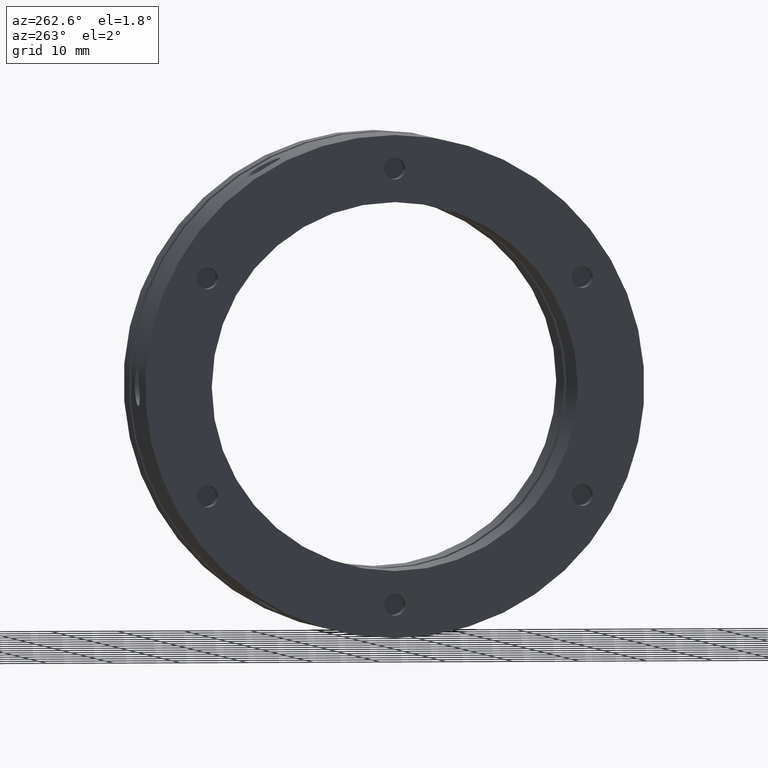
[diagram: clean part render]
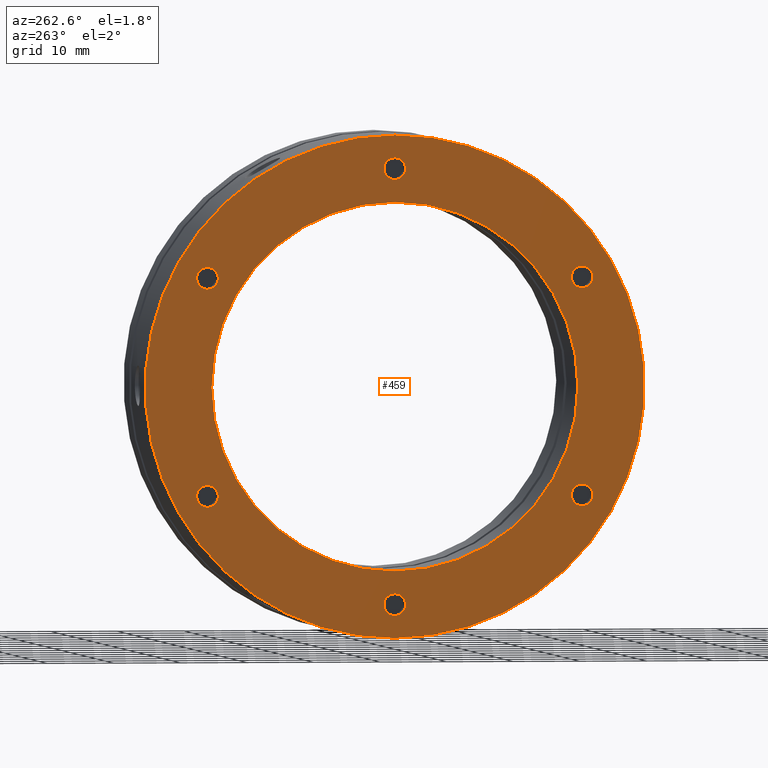
[diagram: same view with one face highlighted and labeled with its STEP entity id]
A machine part, auxiliary view. The second image highlights one B-rep face of the part: STEP entity #459.
In plain terms, the highlighted planar face has unit normal (-1, 0, 0).
Its self-contained STEP definition (entity closure, byte-faithful):
#459 = ADVANCED_FACE ( 'NONE', ( #3411, #3415, #3412, #3400, #3413, #3416, #3417, #3418 ), #4332, .T. ) ;
#586 = EDGE_CURVE ( 'NONE', #1026, #1025, #3576, .T. ) ;
#590 = EDGE_CURVE ( 'NONE', #1030, #1029, #3603, .T. ) ;
#608 = EDGE_CURVE ( 'NONE', #2208, #2201, #3630, .T. ) ;
#654 = EDGE_CURVE ( 'NONE', #1051, #2203, #3696, .T. ) ;
#657 = EDGE_CURVE ( 'NONE', #1046, #1045, #3702, .T. ) ;
#661 = EDGE_CURVE ( 'NONE', #1042, #1041, #3705, .T. ) ;
#1025 = VERTEX_POINT ( 'NONE', #1937 ) ;
#1026 = VERTEX_POINT ( 'NONE', #1938 ) ;
#1029 = VERTEX_POINT ( 'NONE', #1941 ) ;
#1030 = VERTEX_POINT ( 'NONE', #1942 ) ;
#1033 = VERTEX_POINT ( 'NONE', #1945 ) ;
#1034 = VERTEX_POINT ( 'NONE', #1946 ) ;
#1037 = VERTEX_POINT ( 'NONE', #1949 ) ;
#1038 = VERTEX_POINT ( 'NONE', #1950 ) ;
#1041 = VERTEX_POINT ( 'NONE', #1953 ) ;
#1042 = VERTEX_POINT ( 'NONE', #1954 ) ;
#1045 = VERTEX_POINT ( 'NONE', #1957 ) ;
#1046 = VERTEX_POINT ( 'NONE', #1958 ) ;
#1051 = VERTEX_POINT ( 'NONE', #1963 ) ;
#1732 = CARTESIAN_POINT ( 'NONE',  ( -6.938893903907228400E-015, 0.0000000000000000000, 0.0000000000000000000 ) ) ;
#1733 = DIRECTION ( 'NONE',  ( 1.000000000000000000, 0.0000000000000000000, 0.0000000000000000000 ) ) ;
#1734 = DIRECTION ( 'NONE',  ( 0.0000000000000000000, 0.0000000000000000000, -1.000000000000000000 ) ) ;
#1738 = CARTESIAN_POINT ( 'NONE',  ( -7.806255641895631900E-015, 0.0000000000000000000, 32.50000000000001400 ) ) ;
#1739 = DIRECTION ( 'NONE',  ( 1.000000000000000000, -0.0000000000000000000, -0.0000000000000000000 ) ) ;
#1740 = DIRECTION ( 'NONE',  ( 0.0000000000000000000, 0.0000000000000000000, 1.000000000000000000 ) ) ;
#1748 = CARTESIAN_POINT ( 'NONE',  ( -7.806255641895631900E-015, -28.14582562299427300, 16.25000000000001400 ) ) ;
#1749 = DIRECTION ( 'NONE',  ( 1.000000000000000000, -0.0000000000000000000, -0.0000000000000000000 ) ) ;
#1750 = DIRECTION ( 'NONE',  ( 0.0000000000000000000, 0.0000000000000000000, 1.000000000000000000 ) ) ;
#1937 = CARTESIAN_POINT ( 'NONE',  ( -7.806255641895631900E-015, 28.14582562299428800, 14.62899999999998500 ) ) ;
#1938 = CARTESIAN_POINT ( 'NONE',  ( -7.806255641895631900E-015, 28.14582562299428800, 17.87099999999998800 ) ) ;
#1941 = CARTESIAN_POINT ( 'NONE',  ( -7.806255641895631900E-015, 28.14582562299426600, -17.87100000000002700 ) ) ;
#1942 = CARTESIAN_POINT ( 'NONE',  ( -7.806255641895631900E-015, 28.14582562299426600, -14.62900000000002400 ) ) ;
#1945 = CARTESIAN_POINT ( 'NONE',  ( -7.806255641895631900E-015, -2.021930753858213700E-015, -34.12100000000000900 ) ) ;
#1946 = CARTESIAN_POINT ( 'NONE',  ( -7.806255641895631900E-015, -2.220446000000000000E-015, -30.87900000000001600 ) ) ;
#1949 = CARTESIAN_POINT ( 'NONE',  ( -7.806255641895631900E-015, -28.14582562299427700, -17.87100000000000600 ) ) ;
#1950 = CARTESIAN_POINT ( 'NONE',  ( -7.806255641895631900E-015, -28.14582562299427700, -14.62900000000000300 ) ) ;
#1953 = CARTESIAN_POINT ( 'NONE',  ( -7.806255641895631900E-015, -28.14582562299427300, 14.62900000000001400 ) ) ;
#1954 = CARTESIAN_POINT ( 'NONE',  ( -7.806255641895631900E-015, -28.14582562299427300, 17.87100000000001600 ) ) ;
#1957 = CARTESIAN_POINT ( 'NONE',  ( -7.806255641895631900E-015, 1.985152461417858200E-016, 30.87900000000001600 ) ) ;
#1958 = CARTESIAN_POINT ( 'NONE',  ( -7.806255641895631900E-015, 0.0000000000000000000, 34.12100000000000900 ) ) ;
#1963 = CARTESIAN_POINT ( 'NONE',  ( -6.938893903907228400E-015, 3.367778697655221300E-015, 27.50000000000000000 ) ) ;
#2099 = CARTESIAN_POINT ( 'NONE',  ( -8.673617379884035500E-015, 0.0000000000000000000, -37.50000000000000000 ) ) ;
#2102 = CARTESIAN_POINT ( 'NONE',  ( -8.673617379884035500E-015, 4.592425496802574400E-015, 37.50000000000000000 ) ) ;
#2103 = CARTESIAN_POINT ( 'NONE',  ( -6.938893903907228400E-015, 0.0000000000000000000, -27.50000000000000000 ) ) ;
#2201 = VERTEX_POINT ( 'NONE', #2102 ) ;
#2203 = VERTEX_POINT ( 'NONE', #2103 ) ;
#2208 = VERTEX_POINT ( 'NONE', #2099 ) ;
#2291 = ORIENTED_EDGE ( 'NONE', *, *, #4731, .F. ) ;
#2293 = ORIENTED_EDGE ( 'NONE', *, *, #608, .F. ) ;
#2294 = ORIENTED_EDGE ( 'NONE', *, *, #4696, .T. ) ;
#2299 = ORIENTED_EDGE ( 'NONE', *, *, #586, .T. ) ;
#2300 = ORIENTED_EDGE ( 'NONE', *, *, #4711, .T. ) ;
#2302 = ORIENTED_EDGE ( 'NONE', *, *, #590, .T. ) ;
#2305 = ORIENTED_EDGE ( 'NONE', *, *, #4720, .T. ) ;
#2307 = ORIENTED_EDGE ( 'NONE', *, *, #4706, .T. ) ;
#2309 = ORIENTED_EDGE ( 'NONE', *, *, #4729, .T. ) ;
#2311 = ORIENTED_EDGE ( 'NONE', *, *, #4710, .T. ) ;
#2312 = ORIENTED_EDGE ( 'NONE', *, *, #4719, .T. ) ;
#2314 = ORIENTED_EDGE ( 'NONE', *, *, #661, .T. ) ;
#2316 = ORIENTED_EDGE ( 'NONE', *, *, #4716, .T. ) ;
#2320 = ORIENTED_EDGE ( 'NONE', *, *, #657, .T. ) ;
#2322 = ORIENTED_EDGE ( 'NONE', *, *, #654, .T. ) ;
#2325 = ORIENTED_EDGE ( 'NONE', *, *, #4715, .T. ) ;
#2740 = CIRCLE ( 'NONE', #4050, 1.621000000000000900 ) ;
#2756 = CIRCLE ( 'NONE', #4055, 1.621000000000000900 ) ;
#2759 = CIRCLE ( 'NONE', #4057, 1.621000000000000900 ) ;
#2761 = CIRCLE ( 'NONE', #4058, 1.621000000000000900 ) ;
#2765 = CIRCLE ( 'NONE', #4060, 27.50000000000000000 ) ;
#2766 = CIRCLE ( 'NONE', #4061, 1.620999999999997300 ) ;
#2768 = CIRCLE ( 'NONE', #4064, 1.621000000000000900 ) ;
#2769 = CIRCLE ( 'NONE', #4063, 1.621000000000000900 ) ;
#2785 = CIRCLE ( 'NONE', #4065, 1.621000000000000900 ) ;
#2788 = CIRCLE ( 'NONE', #4066, 37.50000000000000000 ) ;
#2845 = CARTESIAN_POINT ( 'NONE',  ( -7.806255641895631900E-015, 28.14582562299428800, 16.24999999999998600 ) ) ;
#2846 = DIRECTION ( 'NONE',  ( 1.000000000000000000, -0.0000000000000000000, -0.0000000000000000000 ) ) ;
#2847 = DIRECTION ( 'NONE',  ( 0.0000000000000000000, 0.0000000000000000000, 1.000000000000000000 ) ) ;
#2871 = CARTESIAN_POINT ( 'NONE',  ( -7.806255641895631900E-015, -2.220446000000000000E-015, -32.50000000000001400 ) ) ;
#2872 = DIRECTION ( 'NONE',  ( 1.000000000000000000, -0.0000000000000000000, -0.0000000000000000000 ) ) ;
#2873 = DIRECTION ( 'NONE',  ( 0.0000000000000000000, 0.0000000000000000000, 1.000000000000000000 ) ) ;
#2879 = CARTESIAN_POINT ( 'NONE',  ( -7.806255641895631900E-015, -28.14582562299427700, -16.25000000000000400 ) ) ;
#2880 = DIRECTION ( 'NONE',  ( 1.000000000000000000, -0.0000000000000000000, -0.0000000000000000000 ) ) ;
#2881 = DIRECTION ( 'NONE',  ( 0.0000000000000000000, 0.0000000000000000000, 1.000000000000000000 ) ) ;
#2883 = CARTESIAN_POINT ( 'NONE',  ( -7.806255641895631900E-015, 28.14582562299426600, -16.25000000000002500 ) ) ;
#2884 = DIRECTION ( 'NONE',  ( 1.000000000000000000, -0.0000000000000000000, -0.0000000000000000000 ) ) ;
#2885 = DIRECTION ( 'NONE',  ( 0.0000000000000000000, 0.0000000000000000000, 1.000000000000000000 ) ) ;
#2956 = CARTESIAN_POINT ( 'NONE',  ( -6.938893903907228400E-015, 0.0000000000000000000, 0.0000000000000000000 ) ) ;
#2957 = DIRECTION ( 'NONE',  ( 1.000000000000000000, 0.0000000000000000000, 0.0000000000000000000 ) ) ;
#2958 = DIRECTION ( 'NONE',  ( 0.0000000000000000000, 0.0000000000000000000, -1.000000000000000000 ) ) ;
#2959 = CARTESIAN_POINT ( 'NONE',  ( -7.806255641895631900E-015, 0.0000000000000000000, 32.50000000000001400 ) ) ;
#2960 = DIRECTION ( 'NONE',  ( 1.000000000000000000, -0.0000000000000000000, -0.0000000000000000000 ) ) ;
#2961 = DIRECTION ( 'NONE',  ( 0.0000000000000000000, 0.0000000000000000000, 1.000000000000000000 ) ) ;
#3001 = CARTESIAN_POINT ( 'NONE',  ( -7.806255641895631900E-015, -28.14582562299427300, 16.25000000000001400 ) ) ;
#3002 = DIRECTION ( 'NONE',  ( 1.000000000000000000, -0.0000000000000000000, -0.0000000000000000000 ) ) ;
#3003 = DIRECTION ( 'NONE',  ( 0.0000000000000000000, 0.0000000000000000000, 1.000000000000000000 ) ) ;
#3006 = CARTESIAN_POINT ( 'NONE',  ( -7.806255641895631900E-015, -2.220446000000000000E-015, -32.50000000000001400 ) ) ;
#3007 = DIRECTION ( 'NONE',  ( 1.000000000000000000, -0.0000000000000000000, -0.0000000000000000000 ) ) ;
#3008 = DIRECTION ( 'NONE',  ( 0.0000000000000000000, 0.0000000000000000000, 1.000000000000000000 ) ) ;
#3025 = CARTESIAN_POINT ( 'NONE',  ( -7.806255641895631900E-015, -28.14582562299427700, -16.25000000000000400 ) ) ;
#3026 = DIRECTION ( 'NONE',  ( 1.000000000000000000, -0.0000000000000000000, -0.0000000000000000000 ) ) ;
#3027 = DIRECTION ( 'NONE',  ( 0.0000000000000000000, 0.0000000000000000000, 1.000000000000000000 ) ) ;
#3028 = CARTESIAN_POINT ( 'NONE',  ( -8.673617379884035500E-015, 0.0000000000000000000, 0.0000000000000000000 ) ) ;
#3029 = DIRECTION ( 'NONE',  ( 1.000000000000000000, 0.0000000000000000000, 0.0000000000000000000 ) ) ;
#3030 = DIRECTION ( 'NONE',  ( 0.0000000000000000000, 0.0000000000000000000, -1.000000000000000000 ) ) ;
#3173 = AXIS2_PLACEMENT_3D ( 'NONE', #4325, #4328, #4334 ) ;
#3275 = EDGE_LOOP ( 'NONE', ( #2320, #2316 ) ) ;
#3276 = EDGE_LOOP ( 'NONE', ( #2307, #2305 ) ) ;
#3277 = EDGE_LOOP ( 'NONE', ( #2311, #2309 ) ) ;
#3278 = EDGE_LOOP ( 'NONE', ( #2314, #2312 ) ) ;
#3281 = EDGE_LOOP ( 'NONE', ( #2325, #2322 ) ) ;
#3282 = EDGE_LOOP ( 'NONE', ( #2302, #2300 ) ) ;
#3283 = EDGE_LOOP ( 'NONE', ( #2299, #2294 ) ) ;
#3284 = EDGE_LOOP ( 'NONE', ( #2293, #2291 ) ) ;
#3400 = FACE_BOUND ( 'NONE', #3277, .T. ) ;
#3411 = FACE_BOUND ( 'NONE', #3281, .T. ) ;
#3412 = FACE_BOUND ( 'NONE', #3278, .T. ) ;
#3413 = FACE_BOUND ( 'NONE', #3276, .T. ) ;
#3415 = FACE_BOUND ( 'NONE', #3275, .T. ) ;
#3416 = FACE_BOUND ( 'NONE', #3282, .T. ) ;
#3417 = FACE_BOUND ( 'NONE', #3283, .T. ) ;
#3418 = FACE_OUTER_BOUND ( 'NONE', #3284, .T. ) ;
#3576 = CIRCLE ( 'NONE', #3924, 1.621000000000000900 ) ;
#3603 = CIRCLE ( 'NONE', #3926, 1.621000000000000900 ) ;
#3630 = CIRCLE ( 'NONE', #3933, 37.50000000000000000 ) ;
#3696 = CIRCLE ( 'NONE', #3943, 27.50000000000000000 ) ;
#3702 = CIRCLE ( 'NONE', #3945, 1.620999999999997300 ) ;
#3705 = CIRCLE ( 'NONE', #3947, 1.621000000000000900 ) ;
#3924 = AXIS2_PLACEMENT_3D ( 'NONE', #4559, #4560, #4561 ) ;
#3926 = AXIS2_PLACEMENT_3D ( 'NONE', #4568, #4569, #4570 ) ;
#3933 = AXIS2_PLACEMENT_3D ( 'NONE', #4613, #4614, #4615 ) ;
#3943 = AXIS2_PLACEMENT_3D ( 'NONE', #1732, #1733, #1734 ) ;
#3945 = AXIS2_PLACEMENT_3D ( 'NONE', #1738, #1739, #1740 ) ;
#3947 = AXIS2_PLACEMENT_3D ( 'NONE', #1748, #1749, #1750 ) ;
#4050 = AXIS2_PLACEMENT_3D ( 'NONE', #2845, #2846, #2847 ) ;
#4055 = AXIS2_PLACEMENT_3D ( 'NONE', #2871, #2872, #2873 ) ;
#4057 = AXIS2_PLACEMENT_3D ( 'NONE', #2879, #2880, #2881 ) ;
#4058 = AXIS2_PLACEMENT_3D ( 'NONE', #2883, #2884, #2885 ) ;
#4060 = AXIS2_PLACEMENT_3D ( 'NONE', #2956, #2957, #2958 ) ;
#4061 = AXIS2_PLACEMENT_3D ( 'NONE', #2959, #2960, #2961 ) ;
#4063 = AXIS2_PLACEMENT_3D ( 'NONE', #3001, #3002, #3003 ) ;
#4064 = AXIS2_PLACEMENT_3D ( 'NONE', #3006, #3007, #3008 ) ;
#4065 = AXIS2_PLACEMENT_3D ( 'NONE', #3025, #3026, #3027 ) ;
#4066 = AXIS2_PLACEMENT_3D ( 'NONE', #3028, #3029, #3030 ) ;
#4325 = CARTESIAN_POINT ( 'NONE',  ( -8.203789000000000100E-015, 32.50000000000000000, 0.0000000000000000000 ) ) ;
#4328 = DIRECTION ( 'NONE',  ( -1.000000000000000000, 0.0000000000000000000, 0.0000000000000000000 ) ) ;
#4332 = PLANE ( 'NONE',  #3173 ) ;
#4334 = DIRECTION ( 'NONE',  ( 0.0000000000000000000, 0.0000000000000000000, 1.000000000000000000 ) ) ;
#4559 = CARTESIAN_POINT ( 'NONE',  ( -7.806255641895631900E-015, 28.14582562299428800, 16.24999999999998600 ) ) ;
#4560 = DIRECTION ( 'NONE',  ( 1.000000000000000000, -0.0000000000000000000, -0.0000000000000000000 ) ) ;
#4561 = DIRECTION ( 'NONE',  ( 0.0000000000000000000, 0.0000000000000000000, 1.000000000000000000 ) ) ;
#4568 = CARTESIAN_POINT ( 'NONE',  ( -7.806255641895631900E-015, 28.14582562299426600, -16.25000000000002500 ) ) ;
#4569 = DIRECTION ( 'NONE',  ( 1.000000000000000000, -0.0000000000000000000, -0.0000000000000000000 ) ) ;
#4570 = DIRECTION ( 'NONE',  ( 0.0000000000000000000, 0.0000000000000000000, 1.000000000000000000 ) ) ;
#4613 = CARTESIAN_POINT ( 'NONE',  ( -8.673617379884035500E-015, 0.0000000000000000000, 0.0000000000000000000 ) ) ;
#4614 = DIRECTION ( 'NONE',  ( 1.000000000000000000, 0.0000000000000000000, 0.0000000000000000000 ) ) ;
#4615 = DIRECTION ( 'NONE',  ( 0.0000000000000000000, 0.0000000000000000000, -1.000000000000000000 ) ) ;
#4696 = EDGE_CURVE ( 'NONE', #1025, #1026, #2740, .T. ) ;
#4706 = EDGE_CURVE ( 'NONE', #1034, #1033, #2756, .T. ) ;
#4710 = EDGE_CURVE ( 'NONE', #1038, #1037, #2759, .T. ) ;
#4711 = EDGE_CURVE ( 'NONE', #1029, #1030, #2761, .T. ) ;
#4715 = EDGE_CURVE ( 'NONE', #2203, #1051, #2765, .T. ) ;
#4716 = EDGE_CURVE ( 'NONE', #1045, #1046, #2766, .T. ) ;
#4719 = EDGE_CURVE ( 'NONE', #1041, #1042, #2769, .T. ) ;
#4720 = EDGE_CURVE ( 'NONE', #1033, #1034, #2768, .T. ) ;
#4729 = EDGE_CURVE ( 'NONE', #1037, #1038, #2785, .T. ) ;
#4731 = EDGE_CURVE ( 'NONE', #2201, #2208, #2788, .T. ) ;